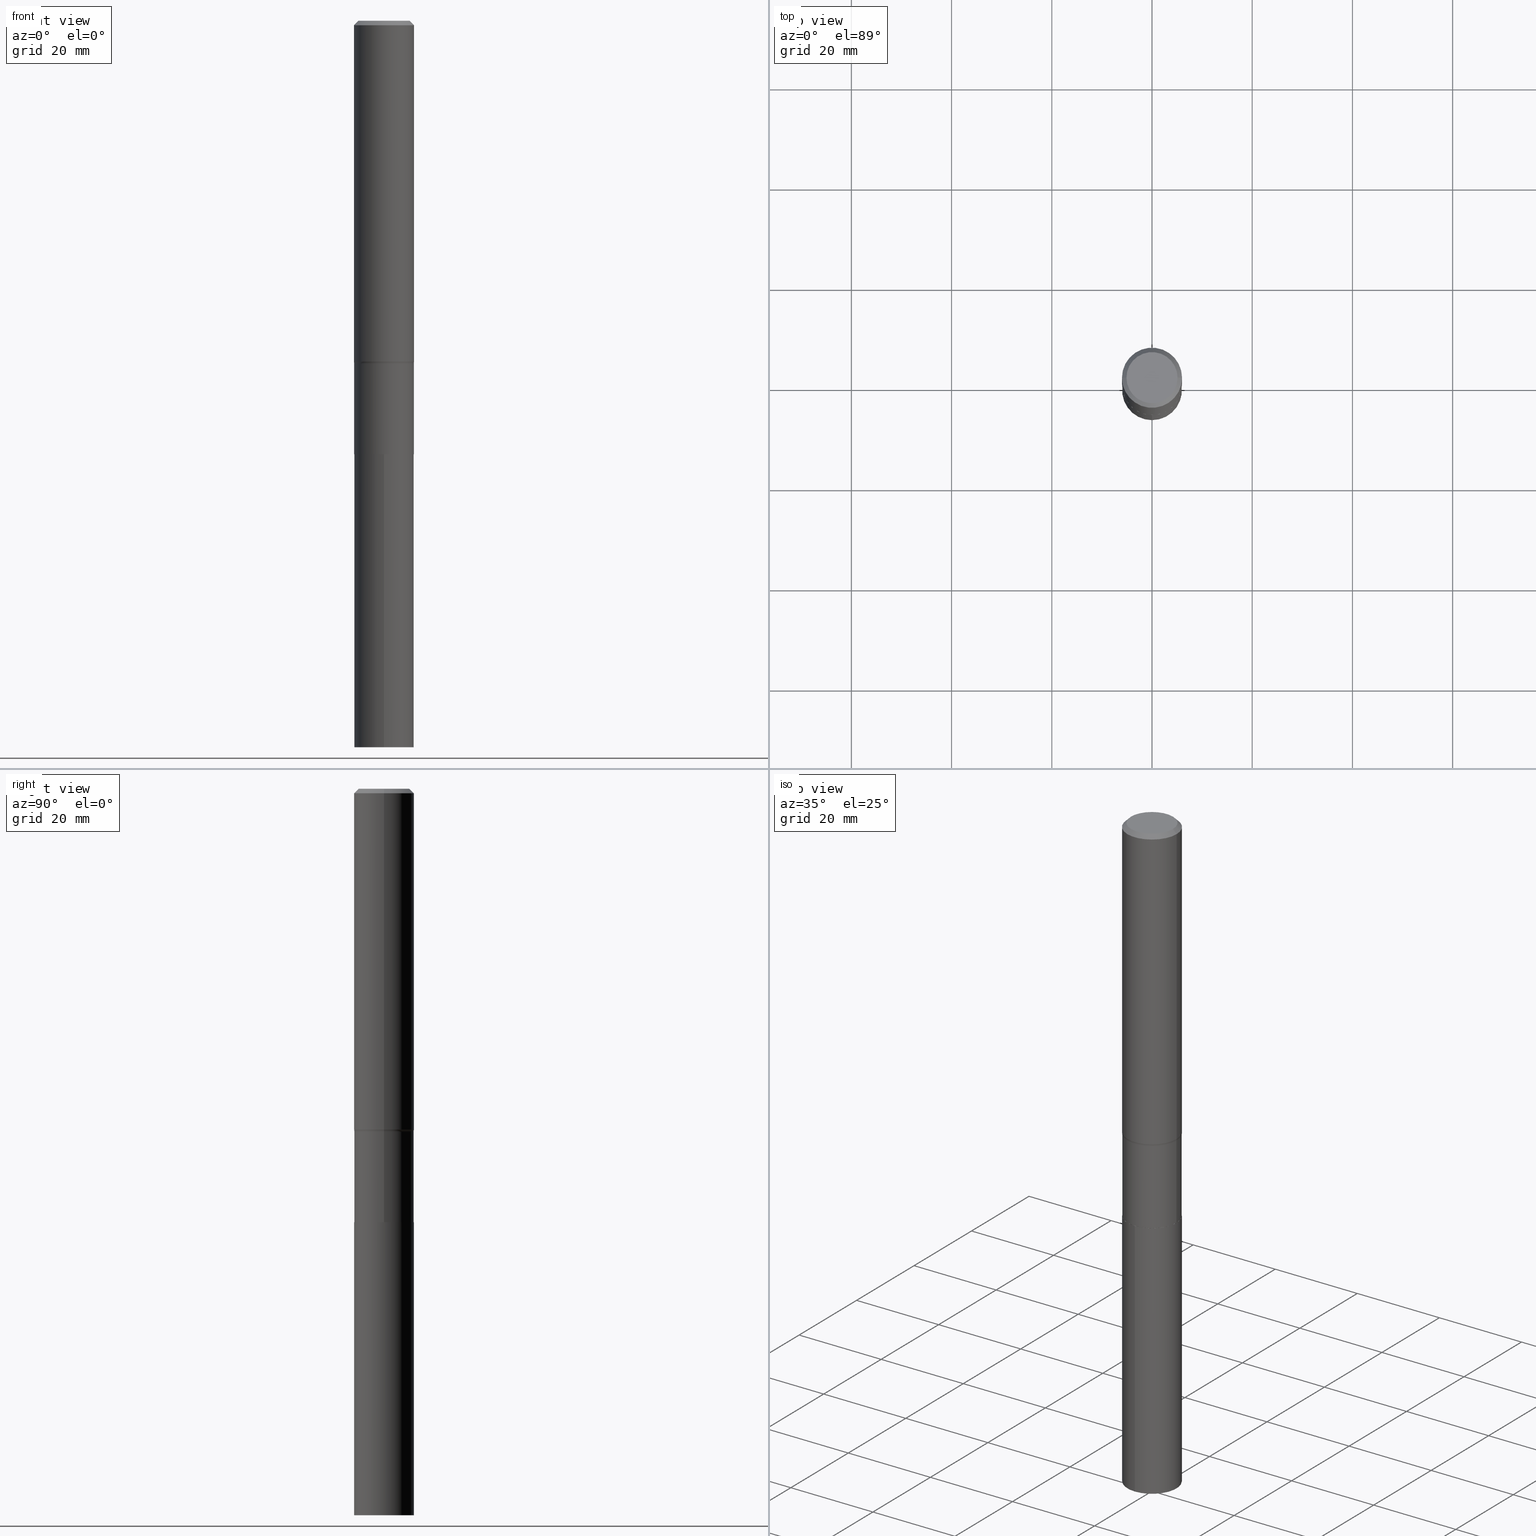
[diagram: canonical four-view strip — front | top / right | iso, engineering-drawing reading convention]
A machine part, canonical four-view strip (front | top / right | iso — engineering-drawing reading convention). The complete STEP part file that produces these views, byte-faithful:
ISO-10303-21;
HEADER;
FILE_DESCRIPTION (( 'STEP AP203' ),
    '1' );
FILE_NAME ('58909.STEP',
    '2024-04-19T14:50:05',
    ( '' ),
    ( '' ),
    'SwSTEP 2.0',
    'SolidWorks 2023',
    '' );
FILE_SCHEMA (( 'CONFIG_CONTROL_DESIGN' ));
ENDSEC;

DATA;
#1 = AXIS2_PLACEMENT_3D ( 'NONE', #205, #53, #268 ) ;
#2 = VERTEX_POINT ( 'NONE', #252 ) ;
#3 = DATE_AND_TIME ( #324, #172 ) ;
#4 = EDGE_CURVE ( 'NONE', #2, #276, #328, .T. ) ;
#5 = VERTEX_POINT ( 'NONE', #291 ) ;
#6 = PERSON_AND_ORGANIZATION ( #137, #412 ) ;
#7 = CARTESIAN_POINT ( 'NONE',  ( 0.2344000000000000528, -1.352599870667833977E-14, -3.405200000000000227 ) ) ;
#8 = DIRECTION ( 'NONE',  ( -2.445468806185136597E-29, 3.491481338843145583E-15, 1.000000000000000000 ) ) ;
#9 = CIRCLE ( 'NONE', #177, 0.07999999999999996003 ) ;
#10 = ORIENTED_EDGE ( 'NONE', *, *, #169, .F. ) ;
#11 = EDGE_CURVE ( 'NONE', #312, #359, #420, .T. ) ;
#12 = CARTESIAN_POINT ( 'NONE',  ( 8.664295980314000494E-31, -1.237031838352135311E-16, -0.03543000000000025296 ) ) ;
#13 = EDGE_LOOP ( 'NONE', ( #329, #220, #61, #152 ) ) ;
#14 = CARTESIAN_POINT ( 'NONE',  ( 1.665512172621757844E-15, 0.2343999999999881179, -3.405700000000000838 ) ) ;
#15 = CARTESIAN_POINT ( 'NONE',  ( 0.000000000000000000, 0.000000000000000000, 0.000000000000000000 ) ) ;
#16 = DIRECTION ( 'NONE',  ( -1.000000000000000000, 7.105427357601001859E-15, 0.000000000000000000 ) ) ;
#17 = ORIENTED_EDGE ( 'NONE', *, *, #326, .T. ) ;
#18 = CIRCLE ( 'NONE', #398, 0.2343999999999999972 ) ;
#19 = LINE ( 'NONE', #168, #433 ) ;
#20 = APPROVAL ( #468, 'UNSPECIFIED' ) ;
#21 = CARTESIAN_POINT ( 'NONE',  ( -0.2362000000000003264, -7.673718693175901763E-15, -2.678525166667487856 ) ) ;
#22 = EDGE_CURVE ( 'NONE', #217, #130, #355, .T. ) ;
#23 = CONICAL_SURFACE ( 'NONE', #317, 0.2362000000000000210, 0.7853981633974452814 ) ;
#24 = CARTESIAN_POINT ( 'NONE',  ( 0.2338999999999999968, -1.352425296600891747E-14, -3.405700000000000394 ) ) ;
#25 = ORIENTED_EDGE ( 'NONE', *, *, #316, .F. ) ;
#26 = PERSON_AND_ORGANIZATION_ROLE ( 'design_owner' ) ;
#27 = ORIENTED_EDGE ( 'NONE', *, *, #99, .T. ) ;
#28 = EDGE_CURVE ( 'NONE', #183, #276, #245, .T. ) ;
#29 = CARTESIAN_POINT ( 'NONE',  ( -0.2362000000000000210, 1.525672600634282748E-15, -0.03543000000000025296 ) ) ;
#30 = EDGE_CURVE ( 'NONE', #287, #300, #18, .T. ) ;
#31 = APPROVAL_DATE_TIME ( #187, #452 ) ;
#32 = CARTESIAN_POINT ( 'NONE',  ( 1.665512172621786046E-15, 0.2343999999999800687, -5.708700000000002106 ) ) ;
#33 = PERSON_AND_ORGANIZATION_ROLE ( 'creator' ) ;
#34 = ORIENTED_EDGE ( 'NONE', *, *, #277, .T. ) ;
#35 = PERSON_AND_ORGANIZATION_ROLE ( 'design_supplier' ) ;
#36 = CARTESIAN_POINT ( 'NONE',  ( 6.591516620191417280E-29, -9.410938800717813781E-15, -2.695399999999999796 ) ) ;
#37 = ORIENTED_EDGE ( 'NONE', *, *, #316, .T. ) ;
#38 = DATE_TIME_ROLE ( 'creation_date' ) ;
#39 = CARTESIAN_POINT ( 'NONE',  ( 0.2362000000000002153, -1.649375784469497708E-15, 1.151752954443001069E-29 ) ) ;
#40 = EDGE_LOOP ( 'NONE', ( #42, #51, #145, #118 ) ) ;
#41 = DIRECTION ( 'NONE',  ( 1.000000000000000000, -6.982962677686263555E-15, 0.000000000000000000 ) ) ;
#42 = ORIENTED_EDGE ( 'NONE', *, *, #4, .F. ) ;
#43 = CONICAL_SURFACE ( 'NONE', #432, 0.2362000000000000210, 0.7853981633974452814 ) ;
#44 = CARTESIAN_POINT ( 'NONE',  ( 6.591516620191417280E-29, -9.410938800717813781E-15, -2.695399999999999796 ) ) ;
#45 = CIRCLE ( 'NONE', #171, 0.2343999999999999417 ) ;
#46 = ORIENTED_EDGE ( 'NONE', *, *, #169, .T. ) ;
#47 = DIRECTION ( 'NONE',  ( -2.445468806185136877E-29, 3.491481338843145188E-15, 1.000000000000000000 ) ) ;
#48 = DIRECTION ( 'NONE',  ( -2.445468806185136597E-29, 3.491481338843145583E-15, 1.000000000000000000 ) ) ;
#49 = ADVANCED_FACE ( 'NONE', ( #89 ), #334, .T. ) ;
#50 = CARTESIAN_POINT ( 'NONE',  ( -0.2343999999999999972, 1.665512172621674816E-15, -1.152998385155749824E-29 ) ) ;
#51 = ORIENTED_EDGE ( 'NONE', *, *, #326, .F. ) ;
#52 = EDGE_CURVE ( 'NONE', #101, #128, #157, .T. ) ;
#53 = DIRECTION ( 'NONE',  ( -2.445468806185136597E-29, 3.491481338843145583E-15, 1.000000000000000000 ) ) ;
#54 = AXIS2_PLACEMENT_3D ( 'NONE', #382, #57, #142 ) ;
#55 = LOCAL_TIME ( 10, 50, 5.000000000000000000, #154 ) ;
#56 = FACE_OUTER_BOUND ( 'NONE', #193, .T. ) ;
#57 = DIRECTION ( 'NONE',  ( -2.445468806185136597E-29, 3.491481338843145583E-15, 1.000000000000000000 ) ) ;
#58 = LINE ( 'NONE', #29, #393 ) ;
#59 = EDGE_LOOP ( 'NONE', ( #104, #161, #82, #258 ) ) ;
#60 = CIRCLE ( 'NONE', #320, 0.2343999999999999972 ) ;
#61 = ORIENTED_EDGE ( 'NONE', *, *, #242, .T. ) ;
#62 = ORIENTED_EDGE ( 'NONE', *, *, #83, .T. ) ;
#63 = CARTESIAN_POINT ( 'NONE',  ( 0.000000000000000000, 0.000000000000000000, 0.000000000000000000 ) ) ;
#64 = ADVANCED_FACE ( 'NONE', ( #256 ), #43, .T. ) ;
#65 = AXIS2_PLACEMENT_3D ( 'NONE', #15, #365, #191 ) ;
#66 = CIRCLE ( 'NONE', #88, 0.2343999999999999972 ) ;
#67 = PERSON_AND_ORGANIZATION ( #137, #412 ) ;
#68 = CARTESIAN_POINT ( 'NONE',  ( 8.328533113224721021E-29, -1.189093799569810036E-14, -3.405700000000000394 ) ) ;
#69 = COORDINATED_UNIVERSAL_TIME_OFFSET ( 5, 0, .BEHIND. ) ;
#70 = UNCERTAINTY_MEASURE_WITH_UNIT (LENGTH_MEASURE( 1.000000000000000082E-05 ), #303, 'distance_accuracy_value', 'NONE');
#71 = EDGE_CURVE ( 'NONE', #186, #5, #86, .T. ) ;
#72 = ORIENTED_EDGE ( 'NONE', *, *, #52, .T. ) ;
#73 = DIRECTION ( 'NONE',  ( 1.000000000000000000, -6.982962677686263555E-15, 0.000000000000000000 ) ) ;
#74 = ORIENTED_EDGE ( 'NONE', *, *, #79, .T. ) ;
#75 = APPROVAL_DATE_TIME ( #3, #20 ) ;
#76 = CIRCLE ( 'NONE', #212, 0.2344000000000000528 ) ;
#77 = PRODUCT_RELATED_PRODUCT_CATEGORY ( 'detail', '', ( #284 ) ) ;
#78 = DIRECTION ( 'NONE',  ( -6.982962677686265922E-15, -1.000000000000000000, 4.661856644478264948E-15 ) ) ;
#79 = EDGE_CURVE ( 'NONE', #312, #183, #234, .T. ) ;
#80 = CALENDAR_DATE ( 2024, 19, 4 ) ;
#81 = FACE_OUTER_BOUND ( 'NONE', #428, .T. ) ;
#82 = ORIENTED_EDGE ( 'NONE', *, *, #313, .T. ) ;
#83 = EDGE_CURVE ( 'NONE', #359, #5, #263, .T. ) ;
#84 = DIRECTION ( 'NONE',  ( -2.445468806185136597E-29, 3.491481338843145583E-15, 1.000000000000000000 ) ) ;
#85 = CARTESIAN_POINT ( 'NONE',  ( 1.396009985441299727E-28, -1.993231775951734575E-14, -5.708700000000001218 ) ) ;
#86 = CIRCLE ( 'NONE', #463, 0.2343999999999999417 ) ;
#87 = CARTESIAN_POINT ( 'NONE',  ( 6.591516620191417280E-29, -9.410938800717813781E-15, -2.695399999999999796 ) ) ;
#88 = AXIS2_PLACEMENT_3D ( 'NONE', #304, #377, #455 ) ;
#89 = FACE_OUTER_BOUND ( 'NONE', #13, .T. ) ;
#90 = CARTESIAN_POINT ( 'NONE',  ( -0.2007700000000000040, 1.463821008716677338E-15, 4.096137381438094301E-18 ) ) ;
#91 = ORIENTED_EDGE ( 'NONE', *, *, #4, .T. ) ;
#92 = PLANE ( 'NONE',  #140 ) ;
#93 = DIRECTION ( 'NONE',  ( 1.000000000000000000, -6.982962677686263555E-15, 0.000000000000000000 ) ) ;
#94 = ADVANCED_BREP_SHAPE_REPRESENTATION ( '58909', ( #102, #98, #178 ), #308 ) ;
#95 = LINE ( 'NONE', #50, #352 ) ;
#96 = DIRECTION ( 'NONE',  ( -6.982962677686266711E-15, -1.000000000000000000, 3.491481338843145583E-15 ) ) ;
#97 = AXIS2_PLACEMENT_3D ( 'NONE', #68, #445, #192 ) ;
#98 = MANIFOLD_SOLID_BREP ( 'Body-Move/Copy2[2]', #391 ) ;
#99 = EDGE_CURVE ( 'NONE', #260, #128, #253, .T. ) ;
#100 = LINE ( 'NONE', #14, #270 ) ;
#101 = VERTEX_POINT ( 'NONE', #206 ) ;
#102 = MANIFOLD_SOLID_BREP ( 'Body-Move/Copy2[1]', #202 ) ;
#103 =( LENGTH_UNIT ( ) NAMED_UNIT ( * ) SI_UNIT ( $, .METRE. ) );
#104 = ORIENTED_EDGE ( 'NONE', *, *, #362, .F. ) ;
#105 = AXIS2_PLACEMENT_3D ( 'NONE', #408, #8, #294 ) ;
#106 = AXIS2_PLACEMENT_3D ( 'NONE', #226, #364, #319 ) ;
#107 = AXIS2_PLACEMENT_3D ( 'NONE', #133, #465, #211 ) ;
#108 = ORIENTED_EDGE ( 'NONE', *, *, #155, .F. ) ;
#109 = EDGE_CURVE ( 'NONE', #128, #260, #76, .T. ) ;
#110 = SECURITY_CLASSIFICATION_LEVEL ( 'unclassified' ) ;
#111 = PERSON_AND_ORGANIZATION ( #137, #412 ) ;
#112 = LINE ( 'NONE', #39, #358 ) ;
#113 = APPROVAL_ROLE ( '' ) ;
#114 = ORIENTED_EDGE ( 'NONE', *, *, #277, .F. ) ;
#115 = CALENDAR_DATE ( 2024, 19, 4 ) ;
#116 = ADVANCED_FACE ( 'NONE', ( #456 ), #305, .F. ) ;
#117 = DIRECTION ( 'NONE',  ( -2.445468806185136597E-29, 3.491481338843145583E-15, 1.000000000000000000 ) ) ;
#118 = ORIENTED_EDGE ( 'NONE', *, *, #28, .T. ) ;
#119 = DATE_AND_TIME ( #115, #55 ) ;
#120 = AXIS2_PLACEMENT_3D ( 'NONE', #85, #197, #78 ) ;
#121 = AXIS2_PLACEMENT_3D ( 'NONE', #181, #404, #41 ) ;
#122 = DESIGN_CONTEXT ( 'detailed design', #446, 'design' ) ;
#123 = CARTESIAN_POINT ( 'NONE',  ( -0.2344000000000000528, -8.984553355251572291E-15, -3.405200000000000227 ) ) ;
#124 = DIRECTION ( 'NONE',  ( -0.7071067811864750752, 7.493145998870092258E-15, 0.7071067811866199593 ) ) ;
#125 = ADVANCED_FACE ( 'NONE', ( #350 ), #392, .F. ) ;
#126 = DIRECTION ( 'NONE',  ( 1.000000000000000000, -6.982962677686267499E-15, 0.000000000000000000 ) ) ;
#127 = DIRECTION ( 'NONE',  ( -6.982962677686265922E-15, -1.000000000000000000, 3.491697682943656499E-15 ) ) ;
#128 = VERTEX_POINT ( 'NONE', #123 ) ;
#129 = CARTESIAN_POINT ( 'NONE',  ( -0.3143999999999999573, -7.176992439488060283E-15, -2.695399999999999796 ) ) ;
#130 = VERTEX_POINT ( 'NONE', #32 ) ;
#131 = FACE_OUTER_BOUND ( 'NONE', #376, .T. ) ;
#132 = CARTESIAN_POINT ( 'NONE',  ( 8.664295980314000494E-31, -1.237031838352135311E-16, -0.03543000000000025296 ) ) ;
#133 = CARTESIAN_POINT ( 'NONE',  ( 8.328533113224721021E-29, -1.189093799569810036E-14, -3.405700000000000394 ) ) ;
#134 = CC_DESIGN_DATE_AND_TIME_ASSIGNMENT ( #119, #254, ( #209 ) ) ;
#135 = LINE ( 'NONE', #338, #371 ) ;
#136 = DIRECTION ( 'NONE',  ( -2.445468806185136597E-29, 3.491481338843145583E-15, 1.000000000000000000 ) ) ;
#137 = PERSON ( 'UNSPECIFIED', 'UNSPECIFIED', 'UNSPECIFIED', ('UNSPECIFIED'), ('UNSPECIFIED'), ('UNSPECIFIED') ) ;
#138 = DIRECTION ( 'NONE',  ( -1.000000000000000000, 6.982962677686267499E-15, 0.000000000000000000 ) ) ;
#139 = VECTOR ( 'NONE', #124, 39.37007874015748143 ) ;
#140 = AXIS2_PLACEMENT_3D ( 'NONE', #167, #454, #127 ) ;
#141 = AXIS2_PLACEMENT_3D ( 'NONE', #274, #147, #175 ) ;
#142 = DIRECTION ( 'NONE',  ( 1.000000000000000000, -6.982962677686268288E-15, 0.000000000000000000 ) ) ;
#143 = ORIENTED_EDGE ( 'NONE', *, *, #83, .F. ) ;
#144 = DIRECTION ( 'NONE',  ( -2.445317733907196105E-29, 3.491697682943656499E-15, 1.000000000000000000 ) ) ;
#145 = ORIENTED_EDGE ( 'NONE', *, *, #436, .T. ) ;
#146 = EDGE_LOOP ( 'NONE', ( #314, #72, #323, #414 ) ) ;
#147 = DIRECTION ( 'NONE',  ( -2.445317733907196105E-29, 3.491697682943656499E-15, 1.000000000000000000 ) ) ;
#148 = COORDINATED_UNIVERSAL_TIME_OFFSET ( 5, 0, .BEHIND. ) ;
#149 = AXIS2_PLACEMENT_3D ( 'NONE', #322, #117, #257 ) ;
#150 = CC_DESIGN_APPROVAL ( #20, ( #351 ) ) ;
#151 = CARTESIAN_POINT ( 'NONE',  ( 8.328533113224721021E-29, -1.189093799569810036E-14, -3.405700000000000394 ) ) ;
#152 = ORIENTED_EDGE ( 'NONE', *, *, #28, .F. ) ;
#153 = EDGE_LOOP ( 'NONE', ( #370, #174 ) ) ;
#154 = COORDINATED_UNIVERSAL_TIME_OFFSET ( 5, 0, .BEHIND. ) ;
#155 = EDGE_CURVE ( 'NONE', #2, #347, #208, .T. ) ;
#156 = CARTESIAN_POINT ( 'NONE',  ( -5.008488096090115757E-47, 7.150793614331959538E-33, 2.048068690724057264E-18 ) ) ;
#157 = LINE ( 'NONE', #442, #139 ) ;
#158 = AXIS2_PLACEMENT_3D ( 'NONE', #460, #144, #462 ) ;
#159 = FACE_OUTER_BOUND ( 'NONE', #146, .T. ) ;
#160 = ORIENTED_EDGE ( 'NONE', *, *, #362, .T. ) ;
#161 = ORIENTED_EDGE ( 'NONE', *, *, #109, .T. ) ;
#162 = DIRECTION ( 'NONE',  ( -2.445317733907196105E-29, 3.491697682943656499E-15, 1.000000000000000000 ) ) ;
#163 = ORIENTED_EDGE ( 'NONE', *, *, #239, .T. ) ;
#164 = CIRCLE ( 'NONE', #121, 0.2338999999999999968 ) ;
#165 = DIRECTION ( 'NONE',  ( -2.445317733907196105E-29, 3.491697682943656499E-15, 1.000000000000000000 ) ) ;
#166 = ORIENTED_EDGE ( 'NONE', *, *, #436, .F. ) ;
#167 = CARTESIAN_POINT ( 'NONE',  ( -4.623409278419409864E-29, -4.654496054538693826E-14, -5.708700000000000330 ) ) ;
#168 = CARTESIAN_POINT ( 'NONE',  ( 0.2338999999999999968, -1.352425296600891747E-14, -3.405700000000000394 ) ) ;
#169 = EDGE_CURVE ( 'NONE', #5, #186, #45, .T. ) ;
#170 = DIRECTION ( 'NONE',  ( -2.445468806185136877E-29, 3.491481338843145188E-15, 1.000000000000000000 ) ) ;
#171 = AXIS2_PLACEMENT_3D ( 'NONE', #36, #367, #281 ) ;
#172 = LOCAL_TIME ( 10, 50, 5.000000000000000000, #366 ) ;
#173 = MECHANICAL_CONTEXT ( 'NONE', #394, 'mechanical' ) ;
#174 = ORIENTED_EDGE ( 'NONE', *, *, #349, .F. ) ;
#175 = DIRECTION ( 'NONE',  ( -6.982962677686265922E-15, -1.000000000000000000, 2.330928322239132474E-15 ) ) ;
#176 = ORIENTED_EDGE ( 'NONE', *, *, #22, .F. ) ;
#177 = AXIS2_PLACEMENT_3D ( 'NONE', #129, #335, #16 ) ;
#178 = AXIS2_PLACEMENT_3D ( 'NONE', #63, #210, #422 ) ;
#179 = COORDINATED_UNIVERSAL_TIME_OFFSET ( 5, 0, .BEHIND. ) ;
#180 = ADVANCED_FACE ( 'NONE', ( #159 ), #421, .T. ) ;
#181 = CARTESIAN_POINT ( 'NONE',  ( 8.328533113224721021E-29, -1.189093799569810036E-14, -3.405700000000000394 ) ) ;
#182 = CC_DESIGN_PERSON_AND_ORGANIZATION_ASSIGNMENT ( #67, #35, ( #360 ) ) ;
#183 = VERTEX_POINT ( 'NONE', #407 ) ;
#184 = VECTOR ( 'NONE', #170, 39.37007874015748143 ) ;
#185 = DIRECTION ( 'NONE',  ( -2.445468806185136597E-29, 3.491481338843145583E-15, 1.000000000000000000 ) ) ;
#186 = VERTEX_POINT ( 'NONE', #399 ) ;
#187 = DATE_AND_TIME ( #80, #458 ) ;
#188 = ADVANCED_FACE ( 'NONE', ( #219 ), #437, .T. ) ;
#189 = ADVANCED_FACE ( 'NONE', ( #81 ), #439, .T. ) ;
#190 = DIRECTION ( 'NONE',  ( -2.445468806185136877E-29, 3.491481338843145188E-15, 1.000000000000000000 ) ) ;
#191 = DIRECTION ( 'NONE',  ( 1.000000000000000000, -6.982962677686266711E-15, 4.876176775795935793E-29 ) ) ;
#192 = DIRECTION ( 'NONE',  ( 1.000000000000000000, -6.982962677686265922E-15, 4.876176775795935793E-29 ) ) ;
#193 = EDGE_LOOP ( 'NONE', ( #405, #37, #390, #114 ) ) ;
#194 = CONICAL_SURFACE ( 'NONE', #107, 0.2338999999999999968, 0.7853981633973459164 ) ;
#195 = LOCAL_TIME ( 10, 50, 5.000000000000000000, #69 ) ;
#196 = LINE ( 'NONE', #236, #283 ) ;
#197 = DIRECTION ( 'NONE',  ( -2.445317733907196105E-29, 3.491697682943656499E-15, 1.000000000000000000 ) ) ;
#198 = DIRECTION ( 'NONE',  ( -2.445468806185136597E-29, 3.491481338843145583E-15, 1.000000000000000000 ) ) ;
#199 = EDGE_LOOP ( 'NONE', ( #17, #321 ) ) ;
#200 = CARTESIAN_POINT ( 'NONE',  ( 0.2362000000000000210, -1.773078968304710106E-15, -0.03543000000000025296 ) ) ;
#201 = ORIENTED_EDGE ( 'NONE', *, *, #340, .F. ) ;
#202 = CLOSED_SHELL ( 'NONE', ( #426, #417, #466, #116 ) ) ;
#203 = AXIS2_PLACEMENT_3D ( 'NONE', #44, #266, #331 ) ;
#204 = DIRECTION ( 'NONE',  ( 1.000000000000000000, -6.982962677686266711E-15, 4.876176775795935793E-29 ) ) ;
#205 = CARTESIAN_POINT ( 'NONE',  ( -1.001697619218023151E-46, 1.430158722866391908E-32, 4.096137381448114529E-18 ) ) ;
#206 = CARTESIAN_POINT ( 'NONE',  ( -0.2338999999999999968, -1.022632930958111563E-14, -3.405700000000000394 ) ) ;
#207 = ORIENTED_EDGE ( 'NONE', *, *, #361, .F. ) ;
#208 = CIRCLE ( 'NONE', #106, 0.2007700000000000040 ) ;
#209 = SECURITY_CLASSIFICATION ( '', '', #110 ) ;
#210 = DIRECTION ( 'NONE',  ( 0.000000000000000000, 0.000000000000000000, 1.000000000000000000 ) ) ;
#211 = DIRECTION ( 'NONE',  ( 1.000000000000000000, -6.982962677686263555E-15, 0.000000000000000000 ) ) ;
#212 = AXIS2_PLACEMENT_3D ( 'NONE', #343, #346, #311 ) ;
#213 = APPROVAL_PERSON_ORGANIZATION ( #248, #406, #395 ) ;
#214 = DATE_AND_TIME ( #215, #247 ) ;
#215 = CALENDAR_DATE ( 2024, 19, 4 ) ;
#216 = CC_DESIGN_DATE_AND_TIME_ASSIGNMENT ( #363, #38, ( #351 ) ) ;
#217 = VERTEX_POINT ( 'NONE', #293 ) ;
#218 = APPROVAL_STATUS ( 'not_yet_approved' ) ;
#219 = FACE_OUTER_BOUND ( 'NONE', #448, .T. ) ;
#220 = ORIENTED_EDGE ( 'NONE', *, *, #11, .T. ) ;
#221 = TOROIDAL_SURFACE ( 'NONE', #203, 0.3143999999999999573, 0.08000000000000000167 ) ;
#222 = APPLICATION_PROTOCOL_DEFINITION ( 'international standard', 'config_control_design', 1994, #446 ) ;
#223 = CARTESIAN_POINT ( 'NONE',  ( 0.000000000000000000, 0.000000000000000000, 0.000000000000000000 ) ) ;
#224 = CARTESIAN_POINT ( 'NONE',  ( 8.664295980314000494E-31, -1.237031838352135311E-16, -0.03543000000000025296 ) ) ;
#225 = APPROVAL_STATUS ( 'not_yet_approved' ) ;
#226 = CARTESIAN_POINT ( 'NONE',  ( -1.001697619218023151E-46, 1.430158722866391908E-32, 4.096137381448114529E-18 ) ) ;
#227 = ORIENTED_EDGE ( 'NONE', *, *, #30, .T. ) ;
#228 = DIRECTION ( 'NONE',  ( -2.445317733907196105E-29, 3.491697682943656499E-15, 1.000000000000000000 ) ) ;
#229 = DIRECTION ( 'NONE',  ( -2.445468806185136597E-29, 3.491481338843145583E-15, 1.000000000000000000 ) ) ;
#230 = CARTESIAN_POINT ( 'NONE',  ( 0.2362000000000000210, -1.744152810908849645E-15, -0.03543000000000025296 ) ) ;
#231 = DIRECTION ( 'NONE',  ( 1.000000000000000000, -6.982962677686267499E-15, 0.000000000000000000 ) ) ;
#232 = ORIENTED_EDGE ( 'NONE', *, *, #11, .F. ) ;
#233 = CARTESIAN_POINT ( 'NONE',  ( -1.636806451649577489E-15, -0.2344000000000118766, -3.405699999999999505 ) ) ;
#234 = LINE ( 'NONE', #419, #184 ) ;
#235 = PRODUCT_DEFINITION_SHAPE ( 'NONE', 'NONE',  #351 ) ;
#236 = CARTESIAN_POINT ( 'NONE',  ( 0.2343999999999999972, -1.636806451649660911E-15, 1.142975836246567295E-29 ) ) ;
#237 = DIRECTION ( 'NONE',  ( 1.000000000000000000, -6.982962677686262766E-15, 0.000000000000000000 ) ) ;
#238 =( NAMED_UNIT ( * ) PLANE_ANGLE_UNIT ( ) SI_UNIT ( $, .RADIAN. ) );
#239 = EDGE_CURVE ( 'NONE', #359, #312, #241, .T. ) ;
#240 = ORIENTED_EDGE ( 'NONE', *, *, #242, .F. ) ;
#241 = CIRCLE ( 'NONE', #149, 0.2362000000000003264 ) ;
#242 = EDGE_CURVE ( 'NONE', #359, #276, #112, .T. ) ;
#243 = PERSON_AND_ORGANIZATION_ROLE ( 'classification_officer' ) ;
#244 = DIRECTION ( 'NONE',  ( 6.982962677686265922E-15, 1.000000000000000000, -3.491697682943656499E-15 ) ) ;
#245 = CIRCLE ( 'NONE', #306, 0.2362000000000000210 ) ;
#246 = AXIS2_PLACEMENT_3D ( 'NONE', #272, #424, #244 ) ;
#247 = LOCAL_TIME ( 10, 50, 5.000000000000000000, #179 ) ;
#248 = PERSON_AND_ORGANIZATION ( #137, #412 ) ;
#249 = DIRECTION ( 'NONE',  ( 1.000000000000000000, -6.982962677686266711E-15, 4.876176775795935793E-29 ) ) ;
#250 = ORIENTED_EDGE ( 'NONE', *, *, #52, .F. ) ;
#251 = SHAPE_DEFINITION_REPRESENTATION ( #235, #94 ) ;
#252 = CARTESIAN_POINT ( 'NONE',  ( 0.2007700000000000040, -1.560767496960719869E-15, 4.096137381458473721E-18 ) ) ;
#253 = CIRCLE ( 'NONE', #54, 0.2344000000000000528 ) ;
#254 = DATE_TIME_ROLE ( 'classification_date' ) ;
#255 = DIRECTION ( 'NONE',  ( -1.000000000000000000, 6.982962677686265922E-15, -4.876176775795935793E-29 ) ) ;
#256 = FACE_OUTER_BOUND ( 'NONE', #368, .T. ) ;
#257 = DIRECTION ( 'NONE',  ( 1.000000000000000000, -6.982962677686263555E-15, 0.000000000000000000 ) ) ;
#258 = ORIENTED_EDGE ( 'NONE', *, *, #71, .F. ) ;
#259 = DIRECTION ( 'NONE',  ( -6.982962677686265922E-15, -1.000000000000000000, 4.661856644478264948E-15 ) ) ;
#260 = VERTEX_POINT ( 'NONE', #7 ) ;
#261 = CC_DESIGN_PERSON_AND_ORGANIZATION_ASSIGNMENT ( #111, #33, ( #351 ) ) ;
#262 = AXIS2_PLACEMENT_3D ( 'NONE', #87, #229, #264 ) ;
#263 = CIRCLE ( 'NONE', #464, 0.07999999999999996003 ) ;
#264 = DIRECTION ( 'NONE',  ( 1.000000000000000000, -6.982962677686267499E-15, 4.883557194083112901E-29 ) ) ;
#265 = ORIENTED_EDGE ( 'NONE', *, *, #30, .F. ) ;
#266 = DIRECTION ( 'NONE',  ( -2.445468806185136597E-29, 3.491481338843145583E-15, 1.000000000000000000 ) ) ;
#267 = ADVANCED_FACE ( 'NONE', ( #434 ), #327, .F. ) ;
#268 = DIRECTION ( 'NONE',  ( 1.000000000000000000, -6.982962677686266711E-15, 4.876140833081945105E-29 ) ) ;
#269 = DIRECTION ( 'NONE',  ( -1.000000000000000000, 6.982962677686267499E-15, 0.000000000000000000 ) ) ;
#270 = VECTOR ( 'NONE', #162, 39.37007874015748143 ) ;
#271 = CARTESIAN_POINT ( 'NONE',  ( 8.328533113224721021E-29, -1.189093799569810036E-14, -3.405700000000000394 ) ) ;
#272 = CARTESIAN_POINT ( 'NONE',  ( 8.328533113224721021E-29, -1.189093799569810036E-14, -3.405700000000000394 ) ) ;
#273 = EDGE_CURVE ( 'NONE', #440, #101, #164, .T. ) ;
#274 = CARTESIAN_POINT ( 'NONE',  ( 8.328533113224721021E-29, -1.189093799569810036E-14, -3.405700000000000394 ) ) ;
#275 =( NAMED_UNIT ( * ) SI_UNIT ( $, .STERADIAN. ) SOLID_ANGLE_UNIT ( ) );
#276 = VERTEX_POINT ( 'NONE', #200 ) ;
#277 = EDGE_CURVE ( 'NONE', #217, #300, #135, .T. ) ;
#278 = AXIS2_PLACEMENT_3D ( 'NONE', #449, #369, #204 ) ;
#279 = EDGE_CURVE ( 'NONE', #440, #260, #19, .T. ) ;
#280 = DIMENSIONAL_EXPONENTS ( 1.000000000000000000, 0.000000000000000000, 0.000000000000000000, 0.000000000000000000, 0.000000000000000000, 0.000000000000000000, 0.000000000000000000 ) ;
#281 = DIRECTION ( 'NONE',  ( 1.000000000000000000, -6.982962677686263555E-15, 0.000000000000000000 ) ) ;
#282 = VECTOR ( 'NONE', #332, 39.37007874015748143 ) ;
#283 = VECTOR ( 'NONE', #47, 39.37007874015748143 ) ;
#284 = PRODUCT ( '58909', '58909', '', ( #173 ) ) ;
#285 = EDGE_LOOP ( 'NONE', ( #348, #373, #62, #46 ) ) ;
#286 = CARTESIAN_POINT ( 'NONE',  ( 0.000000000000000000, 0.000000000000000000, 0.000000000000000000 ) ) ;
#287 = VERTEX_POINT ( 'NONE', #339 ) ;
#288 = PERSON_AND_ORGANIZATION_ROLE ( 'creator' ) ;
#289 = CC_DESIGN_PERSON_AND_ORGANIZATION_ASSIGNMENT ( #387, #26, ( #284 ) ) ;
#290 = DIRECTION ( 'NONE',  ( 2.438088387897960049E-29, -3.491481338843145188E-15, -1.000000000000000000 ) ) ;
#291 = CARTESIAN_POINT ( 'NONE',  ( 0.2343999999999999417, -1.104774525236747390E-14, -2.695399999999999796 ) ) ;
#292 = AXIS2_PLACEMENT_3D ( 'NONE', #295, #447, #231 ) ;
#293 = CARTESIAN_POINT ( 'NONE',  ( -1.636806451649521085E-15, -0.2344000000000199535, -5.708700000000000330 ) ) ;
#294 = DIRECTION ( 'NONE',  ( 1.000000000000000000, -6.982962677686263555E-15, 0.000000000000000000 ) ) ;
#295 = CARTESIAN_POINT ( 'NONE',  ( 8.664295980314000494E-31, -1.237031838352135311E-16, -0.03543000000000025296 ) ) ;
#296 = CARTESIAN_POINT ( 'NONE',  ( 8.328533113224721021E-29, -1.189093799569810036E-14, -3.405700000000000394 ) ) ;
#297 = ADVANCED_FACE ( 'NONE', ( #302 ), #457, .F. ) ;
#298 = ADVANCED_FACE ( 'NONE', ( #372 ), #23, .T. ) ;
#299 = DIRECTION ( 'NONE',  ( -2.445468806185136877E-29, 3.491481338843145188E-15, 1.000000000000000000 ) ) ;
#300 = VERTEX_POINT ( 'NONE', #233 ) ;
#301 = FACE_OUTER_BOUND ( 'NONE', #397, .T. ) ;
#302 = FACE_OUTER_BOUND ( 'NONE', #285, .T. ) ;
#303 =( CONVERSION_BASED_UNIT ( 'INCH', #461 ) LENGTH_UNIT ( ) NAMED_UNIT ( #280 ) );
#304 = CARTESIAN_POINT ( 'NONE',  ( 8.328533113224721021E-29, -1.189093799569810036E-14, -3.405700000000000394 ) ) ;
#305 = PLANE ( 'NONE',  #246 ) ;
#306 = AXIS2_PLACEMENT_3D ( 'NONE', #224, #48, #126 ) ;
#307 = FACE_OUTER_BOUND ( 'NONE', #401, .T. ) ;
#308 =( GEOMETRIC_REPRESENTATION_CONTEXT ( 3 ) GLOBAL_UNCERTAINTY_ASSIGNED_CONTEXT ( ( #70 ) ) GLOBAL_UNIT_ASSIGNED_CONTEXT ( ( #303, #238, #275 ) ) REPRESENTATION_CONTEXT ( 'NONE', 'WORKASPACE' ) );
#309 = ORIENTED_EDGE ( 'NONE', *, *, #325, .T. ) ;
#310 = DIRECTION ( 'NONE',  ( -0.7071067811865453523, 2.468850131082234184E-15, -0.7071067811865496822 ) ) ;
#311 = DIRECTION ( 'NONE',  ( 1.000000000000000000, -6.982962677686268288E-15, 0.000000000000000000 ) ) ;
#312 = VERTEX_POINT ( 'NONE', #21 ) ;
#313 = EDGE_CURVE ( 'NONE', #260, #5, #196, .T. ) ;
#314 = ORIENTED_EDGE ( 'NONE', *, *, #273, .T. ) ;
#315 = CYLINDRICAL_SURFACE ( 'NONE', #158, 0.2343999999999999972 ) ;
#316 = EDGE_CURVE ( 'NONE', #130, #287, #100, .T. ) ;
#317 = AXIS2_PLACEMENT_3D ( 'NONE', #12, #333, #138 ) ;
#318 = PERSON_AND_ORGANIZATION ( #137, #412 ) ;
#319 = DIRECTION ( 'NONE',  ( 1.000000000000000000, -6.982962677686266711E-15, 4.876140833081945105E-29 ) ) ;
#320 = AXIS2_PLACEMENT_3D ( 'NONE', #413, #165, #259 ) ;
#321 = ORIENTED_EDGE ( 'NONE', *, *, #155, .T. ) ;
#322 = CARTESIAN_POINT ( 'NONE',  ( 6.550249741667184753E-29, -9.352020635041259735E-15, -2.678525166667487856 ) ) ;
#323 = ORIENTED_EDGE ( 'NONE', *, *, #99, .F. ) ;
#324 = CALENDAR_DATE ( 2024, 19, 4 ) ;
#325 = EDGE_CURVE ( 'NONE', #300, #287, #66, .T. ) ;
#326 = EDGE_CURVE ( 'NONE', #347, #2, #379, .T. ) ;
#327 = PLANE ( 'NONE',  #411 ) ;
#328 = LINE ( 'NONE', #230, #282 ) ;
#329 = ORIENTED_EDGE ( 'NONE', *, *, #79, .F. ) ;
#330 = AXIS2_PLACEMENT_3D ( 'NONE', #271, #198, #418 ) ;
#331 = DIRECTION ( 'NONE',  ( 1.000000000000000000, -6.982962677686267499E-15, 4.883557194083112901E-29 ) ) ;
#332 = DIRECTION ( 'NONE',  ( 0.7071067811865453523, -7.319954787623248157E-15, -0.7071067811865496822 ) ) ;
#333 = DIRECTION ( 'NONE',  ( 2.445468806185136597E-29, -3.491481338843145583E-15, -1.000000000000000000 ) ) ;
#334 = CYLINDRICAL_SURFACE ( 'NONE', #65, 0.2362000000000002153 ) ;
#335 = DIRECTION ( 'NONE',  ( 7.105427357601001859E-15, 1.000000000000000000, -3.491481338843145583E-15 ) ) ;
#336 = EDGE_LOOP ( 'NONE', ( #232, #444, #427, #143 ) ) ;
#337 = CIRCLE ( 'NONE', #330, 0.2338999999999999968 ) ;
#338 = CARTESIAN_POINT ( 'NONE',  ( -1.636806451649577489E-15, -0.2344000000000118766, -3.405699999999999505 ) ) ;
#339 = CARTESIAN_POINT ( 'NONE',  ( 1.665512172621814247E-15, 0.2343999999999880901, -3.405700000000000838 ) ) ;
#340 = EDGE_CURVE ( 'NONE', #130, #217, #60, .T. ) ;
#341 = CARTESIAN_POINT ( 'NONE',  ( 0.3143999999999999573, -1.160638226658237713E-14, -2.695399999999999796 ) ) ;
#342 = APPLICATION_PROTOCOL_DEFINITION ( 'international standard', 'config_control_design', 1994, #394 ) ;
#343 = CARTESIAN_POINT ( 'NONE',  ( 8.327310378821627098E-29, -1.188919225502867807E-14, -3.405200000000000227 ) ) ;
#344 = ORIENTED_EDGE ( 'NONE', *, *, #361, .T. ) ;
#345 = AXIS2_PLACEMENT_3D ( 'NONE', #151, #84, #73 ) ;
#346 = DIRECTION ( 'NONE',  ( -2.445468806185136597E-29, 3.491481338843145583E-15, 1.000000000000000000 ) ) ;
#347 = VERTEX_POINT ( 'NONE', #90 ) ;
#348 = ORIENTED_EDGE ( 'NONE', *, *, #378, .F. ) ;
#349 = EDGE_CURVE ( 'NONE', #101, #440, #337, .T. ) ;
#350 = FACE_OUTER_BOUND ( 'NONE', #153, .T. ) ;
#351 = PRODUCT_DEFINITION ( 'UNKNOWN', '', #360, #122 ) ;
#352 = VECTOR ( 'NONE', #299, 39.37007874015748143 ) ;
#353 = APPROVAL_PERSON_ORGANIZATION ( #318, #20, #113 ) ;
#354 = ORIENTED_EDGE ( 'NONE', *, *, #349, .T. ) ;
#355 = CIRCLE ( 'NONE', #120, 0.2343999999999999972 ) ;
#356 = CC_DESIGN_PERSON_AND_ORGANIZATION_ASSIGNMENT ( #6, #288, ( #360 ) ) ;
#357 = DIRECTION ( 'NONE',  ( -2.445468806185136597E-29, 3.491481338843145583E-15, 1.000000000000000000 ) ) ;
#358 = VECTOR ( 'NONE', #190, 39.37007874015748143 ) ;
#359 = VERTEX_POINT ( 'NONE', #409 ) ;
#360 = PRODUCT_DEFINITION_FORMATION_WITH_SPECIFIED_SOURCE ( 'ANY', '', #284, .NOT_KNOWN. ) ;
#361 = EDGE_CURVE ( 'NONE', #276, #183, #386, .T. ) ;
#362 = EDGE_CURVE ( 'NONE', #128, #186, #95, .T. ) ;
#363 = DATE_AND_TIME ( #441, #195 ) ;
#364 = DIRECTION ( 'NONE',  ( -2.445468806185136597E-29, 3.491481338843145583E-15, 1.000000000000000000 ) ) ;
#365 = DIRECTION ( 'NONE',  ( -2.445468806185136597E-29, 3.491481338843145583E-15, 1.000000000000000000 ) ) ;
#366 = COORDINATED_UNIVERSAL_TIME_OFFSET ( 5, 0, .BEHIND. ) ;
#367 = DIRECTION ( 'NONE',  ( -2.445468806185136597E-29, 3.491481338843145583E-15, 1.000000000000000000 ) ) ;
#368 = EDGE_LOOP ( 'NONE', ( #108, #91, #344, #166 ) ) ;
#369 = DIRECTION ( 'NONE',  ( -2.445468806185136597E-29, 3.491481338843145583E-15, 1.000000000000000000 ) ) ;
#370 = ORIENTED_EDGE ( 'NONE', *, *, #273, .F. ) ;
#371 = VECTOR ( 'NONE', #453, 39.37007874015748143 ) ;
#372 = FACE_OUTER_BOUND ( 'NONE', #40, .T. ) ;
#373 = ORIENTED_EDGE ( 'NONE', *, *, #239, .F. ) ;
#374 = ADVANCED_FACE ( 'NONE', ( #423 ), #415, .T. ) ;
#375 = DIRECTION ( 'NONE',  ( 0.7071067811864750752, -2.468850131081498176E-15, 0.7071067811866199593 ) ) ;
#376 = EDGE_LOOP ( 'NONE', ( #176, #201 ) ) ;
#377 = DIRECTION ( 'NONE',  ( -2.445317733907196105E-29, 3.491697682943656499E-15, 1.000000000000000000 ) ) ;
#378 = EDGE_CURVE ( 'NONE', #312, #186, #9, .T. ) ;
#379 = CIRCLE ( 'NONE', #1, 0.2007700000000000040 ) ;
#380 = CC_DESIGN_SECURITY_CLASSIFICATION ( #209, ( #360 ) ) ;
#381 = FACE_OUTER_BOUND ( 'NONE', #336, .T. ) ;
#382 = CARTESIAN_POINT ( 'NONE',  ( 8.327310378821627098E-29, -1.188919225502867807E-14, -3.405200000000000227 ) ) ;
#383 = ORIENTED_EDGE ( 'NONE', *, *, #279, .T. ) ;
#384 = CARTESIAN_POINT ( 'NONE',  ( 6.591516620191417280E-29, -9.410938800717813781E-15, -2.695399999999999796 ) ) ;
#385 = ORIENTED_EDGE ( 'NONE', *, *, #109, .F. ) ;
#386 = CIRCLE ( 'NONE', #292, 0.2362000000000000210 ) ;
#387 = PERSON_AND_ORGANIZATION ( #137, #412 ) ;
#388 = APPROVAL_PERSON_ORGANIZATION ( #403, #452, #431 ) ;
#389 = ADVANCED_FACE ( 'NONE', ( #381 ), #221, .F. ) ;
#390 = ORIENTED_EDGE ( 'NONE', *, *, #325, .F. ) ;
#391 = CLOSED_SHELL ( 'NONE', ( #180, #64, #188, #389, #189, #374, #297, #49, #298, #267, #125, #430 ) ) ;
#392 = PLANE ( 'NONE',  #97 ) ;
#393 = VECTOR ( 'NONE', #310, 39.37007874015748143 ) ;
#394 = APPLICATION_CONTEXT ( 'configuration controlled 3d designs of mechanical parts and assemblies' ) ;
#395 = APPROVAL_ROLE ( '' ) ;
#396 = DIRECTION ( 'NONE',  ( 1.000000000000000000, -6.982962677686266711E-15, 4.876176775795935793E-29 ) ) ;
#397 = EDGE_LOOP ( 'NONE', ( #250, #354, #383, #385 ) ) ;
#398 = AXIS2_PLACEMENT_3D ( 'NONE', #296, #228, #410 ) ;
#399 = CARTESIAN_POINT ( 'NONE',  ( -0.2343999999999999417, -8.984553355251572291E-15, -2.695399999999999796 ) ) ;
#400 = AXIS2_PLACEMENT_3D ( 'NONE', #223, #357, #396 ) ;
#401 = EDGE_LOOP ( 'NONE', ( #25, #450, #34, #265 ) ) ;
#402 = CC_DESIGN_APPROVAL ( #452, ( #360 ) ) ;
#403 = PERSON_AND_ORGANIZATION ( #137, #412 ) ;
#404 = DIRECTION ( 'NONE',  ( -2.445468806185136597E-29, 3.491481338843145583E-15, 1.000000000000000000 ) ) ;
#405 = ORIENTED_EDGE ( 'NONE', *, *, #22, .T. ) ;
#406 = APPROVAL ( #225, 'UNSPECIFIED' ) ;
#407 = CARTESIAN_POINT ( 'NONE',  ( -0.2362000000000000210, -3.059559967572877305E-15, -0.03543000000000025296 ) ) ;
#408 = CARTESIAN_POINT ( 'NONE',  ( 6.550249741667184753E-29, -9.352020635041259735E-15, -2.678525166667487856 ) ) ;
#409 = CARTESIAN_POINT ( 'NONE',  ( 0.2362000000000003264, -1.100139641951075784E-14, -2.678525166667487856 ) ) ;
#410 = DIRECTION ( 'NONE',  ( -6.982962677686265922E-15, -1.000000000000000000, 2.330928322239132474E-15 ) ) ;
#411 = AXIS2_PLACEMENT_3D ( 'NONE', #156, #290, #255 ) ;
#412 = ORGANIZATION ( 'UNSPECIFIED', 'UNSPECIFIED', '' ) ;
#413 = CARTESIAN_POINT ( 'NONE',  ( 1.396009985441299727E-28, -1.993231775951734575E-14, -5.708700000000001218 ) ) ;
#414 = ORIENTED_EDGE ( 'NONE', *, *, #279, .F. ) ;
#415 = CYLINDRICAL_SURFACE ( 'NONE', #278, 0.2343999999999999972 ) ;
#416 = DIRECTION ( 'NONE',  ( 2.445468806185136597E-29, -3.491481338843145583E-15, -1.000000000000000000 ) ) ;
#417 = ADVANCED_FACE ( 'NONE', ( #131 ), #92, .F. ) ;
#418 = DIRECTION ( 'NONE',  ( 1.000000000000000000, -6.982962677686263555E-15, 0.000000000000000000 ) ) ;
#419 = CARTESIAN_POINT ( 'NONE',  ( -0.2362000000000002153, 1.678301941865358169E-15, -1.161852468318209878E-29 ) ) ;
#420 = CIRCLE ( 'NONE', #105, 0.2362000000000003264 ) ;
#421 = CONICAL_SURFACE ( 'NONE', #345, 0.2338999999999999968, 0.7853981633973459164 ) ;
#422 = DIRECTION ( 'NONE',  ( 1.000000000000000000, 0.000000000000000000, 0.000000000000000000 ) ) ;
#423 = FACE_OUTER_BOUND ( 'NONE', #59, .T. ) ;
#424 = DIRECTION ( 'NONE',  ( 2.445317733907195825E-29, -3.491697682943656499E-15, -1.000000000000000000 ) ) ;
#425 = EDGE_LOOP ( 'NONE', ( #309, #227 ) ) ;
#426 = ADVANCED_FACE ( 'NONE', ( #56 ), #315, .T. ) ;
#427 = ORIENTED_EDGE ( 'NONE', *, *, #71, .T. ) ;
#428 = EDGE_LOOP ( 'NONE', ( #27, #160, #10, #459 ) ) ;
#429 = CYLINDRICAL_SURFACE ( 'NONE', #141, 0.2343999999999999972 ) ;
#430 = ADVANCED_FACE ( 'NONE', ( #301 ), #194, .T. ) ;
#431 = APPROVAL_ROLE ( '' ) ;
#432 = AXIS2_PLACEMENT_3D ( 'NONE', #132, #416, #269 ) ;
#433 = VECTOR ( 'NONE', #375, 39.37007874015748143 ) ;
#434 = FACE_OUTER_BOUND ( 'NONE', #199, .T. ) ;
#435 = CC_DESIGN_PERSON_AND_ORGANIZATION_ASSIGNMENT ( #467, #243, ( #209 ) ) ;
#436 = EDGE_CURVE ( 'NONE', #347, #183, #58, .T. ) ;
#437 = CYLINDRICAL_SURFACE ( 'NONE', #400, 0.2362000000000002153 ) ;
#438 = APPROVAL_DATE_TIME ( #214, #406 ) ;
#439 = CYLINDRICAL_SURFACE ( 'NONE', #451, 0.2343999999999999972 ) ;
#440 = VERTEX_POINT ( 'NONE', #24 ) ;
#441 = CALENDAR_DATE ( 2024, 19, 4 ) ;
#442 = CARTESIAN_POINT ( 'NONE',  ( -0.2338999999999999968, -1.022897853675522762E-14, -3.405700000000000394 ) ) ;
#443 = CC_DESIGN_APPROVAL ( #406, ( #209 ) ) ;
#444 = ORIENTED_EDGE ( 'NONE', *, *, #378, .T. ) ;
#445 = DIRECTION ( 'NONE',  ( -2.438088387897960049E-29, 3.491481338843145188E-15, 1.000000000000000000 ) ) ;
#446 = APPLICATION_CONTEXT ( 'configuration controlled 3d designs of mechanical parts and assemblies' ) ;
#447 = DIRECTION ( 'NONE',  ( -2.445468806185136597E-29, 3.491481338843145583E-15, 1.000000000000000000 ) ) ;
#448 = EDGE_LOOP ( 'NONE', ( #163, #74, #207, #240 ) ) ;
#449 = CARTESIAN_POINT ( 'NONE',  ( 0.000000000000000000, 0.000000000000000000, 0.000000000000000000 ) ) ;
#450 = ORIENTED_EDGE ( 'NONE', *, *, #340, .T. ) ;
#451 = AXIS2_PLACEMENT_3D ( 'NONE', #286, #185, #249 ) ;
#452 = APPROVAL ( #218, 'UNSPECIFIED' ) ;
#453 = DIRECTION ( 'NONE',  ( -2.445317733907196105E-29, 3.491697682943656499E-15, 1.000000000000000000 ) ) ;
#454 = DIRECTION ( 'NONE',  ( -2.445317733907195825E-29, 3.491697682943656499E-15, 1.000000000000000000 ) ) ;
#455 = DIRECTION ( 'NONE',  ( -6.982962677686265922E-15, -1.000000000000000000, 2.330928322239132474E-15 ) ) ;
#456 = FACE_OUTER_BOUND ( 'NONE', #425, .T. ) ;
#457 = TOROIDAL_SURFACE ( 'NONE', #262, 0.3143999999999999573, 0.08000000000000000167 ) ;
#458 = LOCAL_TIME ( 10, 50, 5.000000000000000000, #148 ) ;
#459 = ORIENTED_EDGE ( 'NONE', *, *, #313, .F. ) ;
#460 = CARTESIAN_POINT ( 'NONE',  ( 8.328533113224721021E-29, -1.189093799569810036E-14, -3.405700000000000394 ) ) ;
#461 = LENGTH_MEASURE_WITH_UNIT ( LENGTH_MEASURE( 0.02539999999999999897 ), #103 );
#462 = DIRECTION ( 'NONE',  ( -6.982962677686265922E-15, -1.000000000000000000, 2.330928322239132474E-15 ) ) ;
#463 = AXIS2_PLACEMENT_3D ( 'NONE', #384, #136, #93 ) ;
#464 = AXIS2_PLACEMENT_3D ( 'NONE', #341, #96, #237 ) ;
#465 = DIRECTION ( 'NONE',  ( -2.445468806185136597E-29, 3.491481338843145583E-15, 1.000000000000000000 ) ) ;
#466 = ADVANCED_FACE ( 'NONE', ( #307 ), #429, .T. ) ;
#467 = PERSON_AND_ORGANIZATION ( #137, #412 ) ;
#468 = APPROVAL_STATUS ( 'not_yet_approved' ) ;
ENDSEC;
END-ISO-10303-21;
